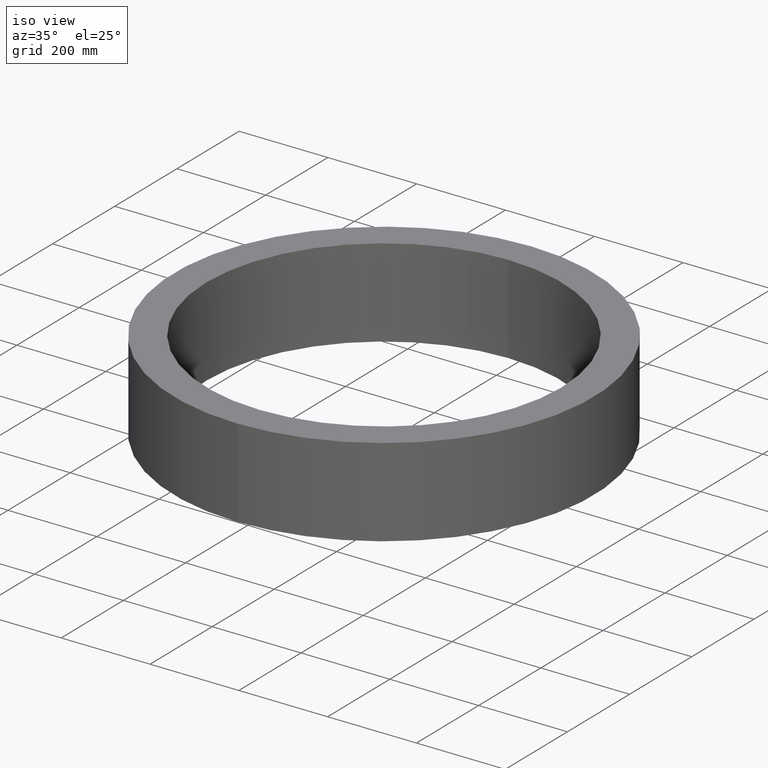
[diagram: clean part render]
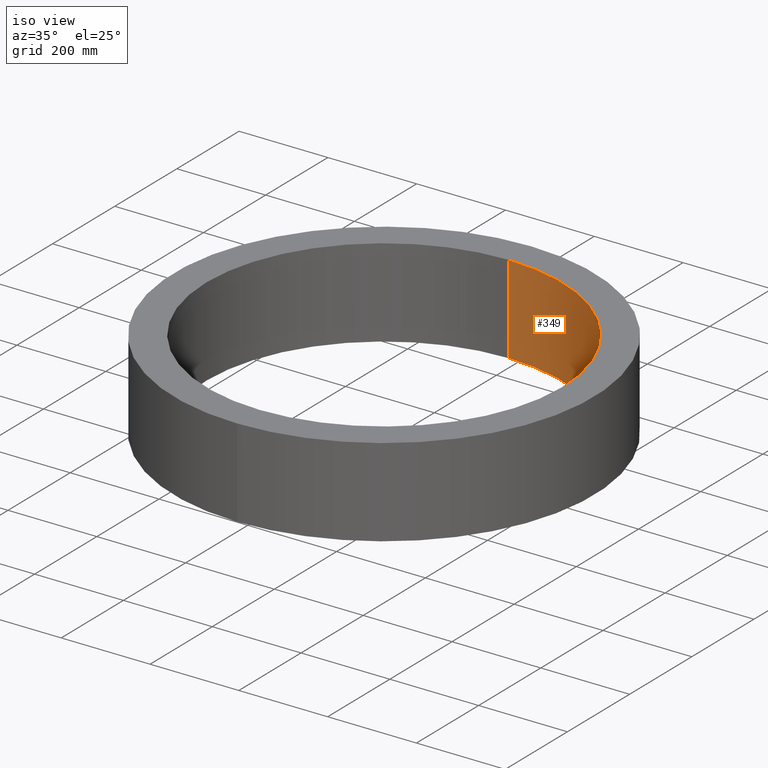
[diagram: same view with one face highlighted and labeled with its STEP entity id]
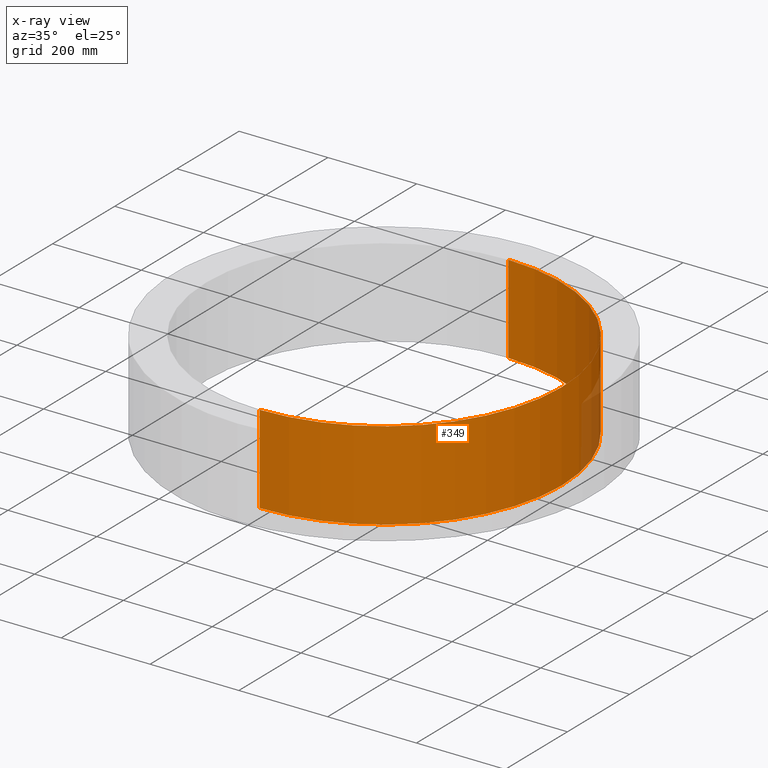
[diagram: x-ray of the same camera — body ghosted, the highlighted face saturated]
A machine part, iso view. The second image highlights one B-rep face of the part: STEP entity #349.
The next image is the same camera in x-ray: the body ghosted, the highlighted face saturated — about 3% of this face is hidden behind the body in this view.
In plain terms, the highlighted cylindrical surface (partial cylindrical patch) has radius 400 mm, axis along (-0, -0, -1).
Its self-contained STEP definition (entity closure, byte-faithful):
#2 = VECTOR ( 'NONE', #161, 1000.000000000000000 ) ;
#12 = CARTESIAN_POINT ( 'NONE',  ( 4.898587196589412868E-14, 0.0000000000000000000, 400.0000000000000000 ) ) ;
#22 = LINE ( 'NONE', #337, #154 ) ;
#33 = CARTESIAN_POINT ( 'NONE',  ( 0.0000000000000000000, 0.0000000000000000000, -400.0000000000000000 ) ) ;
#43 = CARTESIAN_POINT ( 'NONE',  ( 0.0000000000000000000, 200.0000000000000000, -400.0000000000000000 ) ) ;
#47 = AXIS2_PLACEMENT_3D ( 'NONE', #261, #207, #294 ) ;
#63 = VERTEX_POINT ( 'NONE', #12 ) ;
#66 = DIRECTION ( 'NONE',  ( -0.0000000000000000000, -1.000000000000000000, -0.0000000000000000000 ) ) ;
#78 = CIRCLE ( 'NONE', #47, 400.0000000000000000 ) ;
#81 = DIRECTION ( 'NONE',  ( 0.0000000000000000000, 0.0000000000000000000, -1.000000000000000000 ) ) ;
#99 = VERTEX_POINT ( 'NONE', #33 ) ;
#102 = EDGE_CURVE ( 'NONE', #213, #194, #306, .T. ) ;
#129 = LINE ( 'NONE', #247, #2 ) ;
#152 = EDGE_CURVE ( 'NONE', #99, #63, #78, .T. ) ;
#154 = VECTOR ( 'NONE', #66, 1000.000000000000000 ) ;
#155 = ORIENTED_EDGE ( 'NONE', *, *, #102, .T. ) ;
#161 = DIRECTION ( 'NONE',  ( -0.0000000000000000000, -1.000000000000000000, -0.0000000000000000000 ) ) ;
#176 = CYLINDRICAL_SURFACE ( 'NONE', #307, 400.0000000000000000 ) ;
#189 = EDGE_LOOP ( 'NONE', ( #155, #191, #222, #249 ) ) ;
#191 = ORIENTED_EDGE ( 'NONE', *, *, #241, .T. ) ;
#193 = CARTESIAN_POINT ( 'NONE',  ( 4.898587196589412868E-14, 200.0000000000000000, 400.0000000000000000 ) ) ;
#194 = VERTEX_POINT ( 'NONE', #193 ) ;
#207 = DIRECTION ( 'NONE',  ( 0.0000000000000000000, 1.000000000000000000, 0.0000000000000000000 ) ) ;
#208 = DIRECTION ( 'NONE',  ( 0.0000000000000000000, 0.0000000000000000000, 1.000000000000000000 ) ) ;
#213 = VERTEX_POINT ( 'NONE', #43 ) ;
#214 = DIRECTION ( 'NONE',  ( 0.0000000000000000000, 1.000000000000000000, 0.0000000000000000000 ) ) ;
#222 = ORIENTED_EDGE ( 'NONE', *, *, #152, .F. ) ;
#237 = FACE_OUTER_BOUND ( 'NONE', #189, .T. ) ;
#241 = EDGE_CURVE ( 'NONE', #194, #63, #22, .T. ) ;
#247 = CARTESIAN_POINT ( 'NONE',  ( 0.0000000000000000000, 200.0000000000000000, -400.0000000000000000 ) ) ;
#249 = ORIENTED_EDGE ( 'NONE', *, *, #278, .F. ) ;
#261 = CARTESIAN_POINT ( 'NONE',  ( 0.0000000000000000000, 0.0000000000000000000, 0.0000000000000000000 ) ) ;
#278 = EDGE_CURVE ( 'NONE', #213, #99, #129, .T. ) ;
#293 = CARTESIAN_POINT ( 'NONE',  ( 0.0000000000000000000, 200.0000000000000000, 0.0000000000000000000 ) ) ;
#294 = DIRECTION ( 'NONE',  ( 0.0000000000000000000, 0.0000000000000000000, 1.000000000000000000 ) ) ;
#296 = CARTESIAN_POINT ( 'NONE',  ( 0.0000000000000000000, 200.0000000000000000, 0.0000000000000000000 ) ) ;
#298 = AXIS2_PLACEMENT_3D ( 'NONE', #296, #214, #208 ) ;
#306 = CIRCLE ( 'NONE', #298, 400.0000000000000000 ) ;
#307 = AXIS2_PLACEMENT_3D ( 'NONE', #293, #355, #81 ) ;
#337 = CARTESIAN_POINT ( 'NONE',  ( 4.898587196589412868E-14, 200.0000000000000000, 400.0000000000000000 ) ) ;
#349 = ADVANCED_FACE ( 'NONE', ( #237 ), #176, .F. ) ;
#355 = DIRECTION ( 'NONE',  ( -0.0000000000000000000, -1.000000000000000000, -0.0000000000000000000 ) ) ;